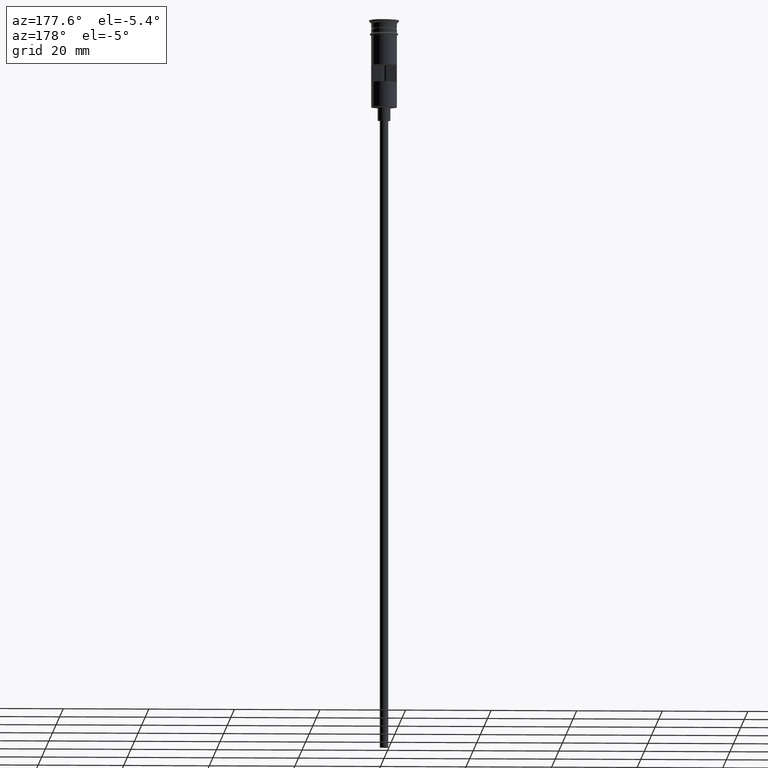
[diagram: clean part render]
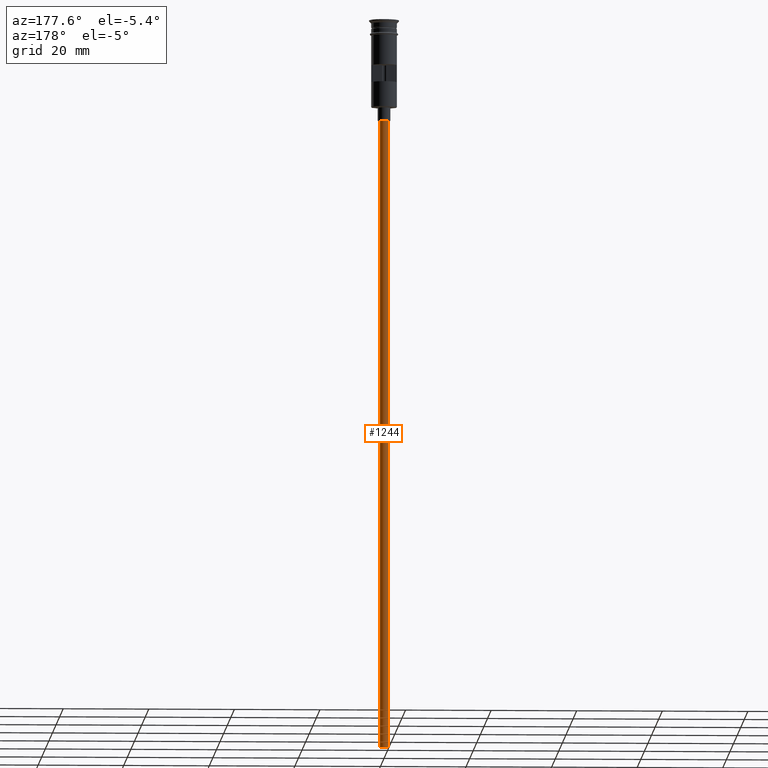
[diagram: same view with one face highlighted and labeled with its STEP entity id]
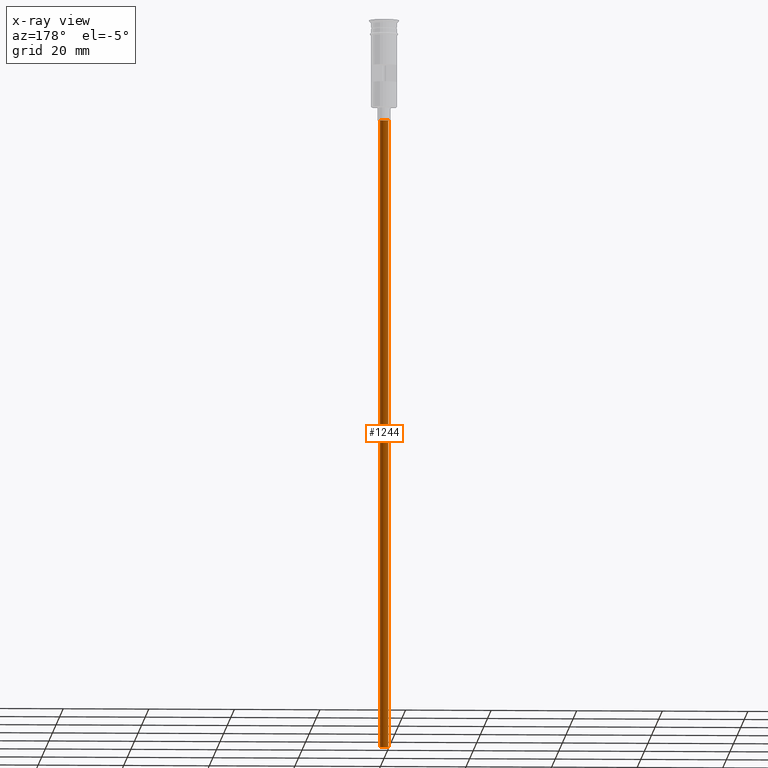
[diagram: x-ray of the same camera — body ghosted, the highlighted face saturated]
A machine part, auxiliary view. The second image highlights one B-rep face of the part: STEP entity #1244.
The next image is the same camera in x-ray: the body ghosted, the highlighted face saturated — about 0% of this face is hidden behind the body in this view.
In plain terms, the highlighted cylindrical surface (edge-blend (fillet) strip) has radius 1 mm, axis along (-0, -0, 1).
Its self-contained STEP definition (entity closure, byte-faithful):
#7 = CARTESIAN_POINT ( 'NONE',  ( 0.000000000000000000, 0.000000000000000000, -170.4999999999999716 ) ) ;
#56 = CARTESIAN_POINT ( 'NONE',  ( -0.9999999999999997780, 1.224646799147352961E-16, -23.50000000000000000 ) ) ;
#98 = DIRECTION ( 'NONE',  ( 0.000000000000000000, 0.000000000000000000, -1.000000000000000000 ) ) ;
#217 = CARTESIAN_POINT ( 'NONE',  ( -0.9999999999999997780, 1.224646799147352961E-16, -170.4999999999999716 ) ) ;
#238 = AXIS2_PLACEMENT_3D ( 'NONE', #7, #1339, #757 ) ;
#369 = CIRCLE ( 'NONE', #542, 0.9999999999999997780 ) ;
#390 = AXIS2_PLACEMENT_3D ( 'NONE', #592, #98, #1451 ) ;
#398 = CARTESIAN_POINT ( 'NONE',  ( 0.000000000000000000, 0.000000000000000000, -170.4999999999999716 ) ) ;
#434 = CARTESIAN_POINT ( 'NONE',  ( -0.9999999999999997780, 1.224646799147352961E-16, -170.4999999999999716 ) ) ;
#504 = VERTEX_POINT ( 'NONE', #1056 ) ;
#542 = AXIS2_PLACEMENT_3D ( 'NONE', #398, #759, #1242 ) ;
#564 = EDGE_CURVE ( 'NONE', #1461, #957, #664, .T. ) ;
#592 = CARTESIAN_POINT ( 'NONE',  ( 0.000000000000000000, 0.000000000000000000, -23.50000000000000000 ) ) ;
#624 = VECTOR ( 'NONE', #1218, 1000.000000000000000 ) ;
#664 = LINE ( 'NONE', #434, #1203 ) ;
#689 = EDGE_CURVE ( 'NONE', #957, #504, #1204, .T. ) ;
#757 = DIRECTION ( 'NONE',  ( 1.000000000000000000, 0.000000000000000000, 0.000000000000000000 ) ) ;
#759 = DIRECTION ( 'NONE',  ( 0.000000000000000000, 0.000000000000000000, -1.000000000000000000 ) ) ;
#798 = EDGE_LOOP ( 'NONE', ( #1472, #1338, #1314, #990 ) ) ;
#859 = CARTESIAN_POINT ( 'NONE',  ( 0.9999999999999997780, 0.000000000000000000, -170.4999999999999716 ) ) ;
#864 = EDGE_CURVE ( 'NONE', #1461, #1580, #369, .T. ) ;
#929 = CARTESIAN_POINT ( 'NONE',  ( 0.9999999999999997780, 0.000000000000000000, -170.4999999999999716 ) ) ;
#957 = VERTEX_POINT ( 'NONE', #56 ) ;
#990 = ORIENTED_EDGE ( 'NONE', *, *, #1276, .F. ) ;
#1056 = CARTESIAN_POINT ( 'NONE',  ( 0.9999999999999997780, 0.000000000000000000, -23.50000000000000000 ) ) ;
#1111 = LINE ( 'NONE', #859, #624 ) ;
#1203 = VECTOR ( 'NONE', #1282, 1000.000000000000000 ) ;
#1204 = CIRCLE ( 'NONE', #390, 0.9999999999999997780 ) ;
#1218 = DIRECTION ( 'NONE',  ( -0.000000000000000000, -0.000000000000000000, 1.000000000000000000 ) ) ;
#1224 = FACE_OUTER_BOUND ( 'NONE', #798, .T. ) ;
#1242 = DIRECTION ( 'NONE',  ( -1.000000000000000000, 0.000000000000000000, 0.000000000000000000 ) ) ;
#1244 = ADVANCED_FACE ( 'NONE', ( #1224 ), #1355, .T. ) ;
#1276 = EDGE_CURVE ( 'NONE', #1580, #504, #1111, .T. ) ;
#1282 = DIRECTION ( 'NONE',  ( -0.000000000000000000, -0.000000000000000000, 1.000000000000000000 ) ) ;
#1314 = ORIENTED_EDGE ( 'NONE', *, *, #689, .T. ) ;
#1338 = ORIENTED_EDGE ( 'NONE', *, *, #564, .T. ) ;
#1339 = DIRECTION ( 'NONE',  ( -0.000000000000000000, -0.000000000000000000, 1.000000000000000000 ) ) ;
#1355 = CYLINDRICAL_SURFACE ( 'NONE', #238, 0.9999999999999997780 ) ;
#1451 = DIRECTION ( 'NONE',  ( -1.000000000000000000, 0.000000000000000000, 0.000000000000000000 ) ) ;
#1461 = VERTEX_POINT ( 'NONE', #217 ) ;
#1472 = ORIENTED_EDGE ( 'NONE', *, *, #864, .F. ) ;
#1580 = VERTEX_POINT ( 'NONE', #929 ) ;